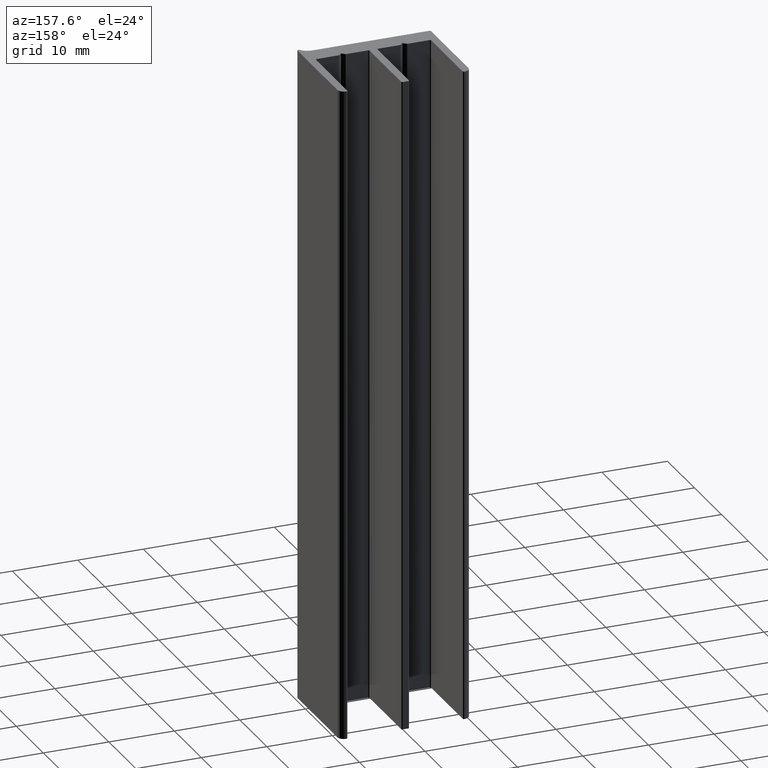
[diagram: clean part render]
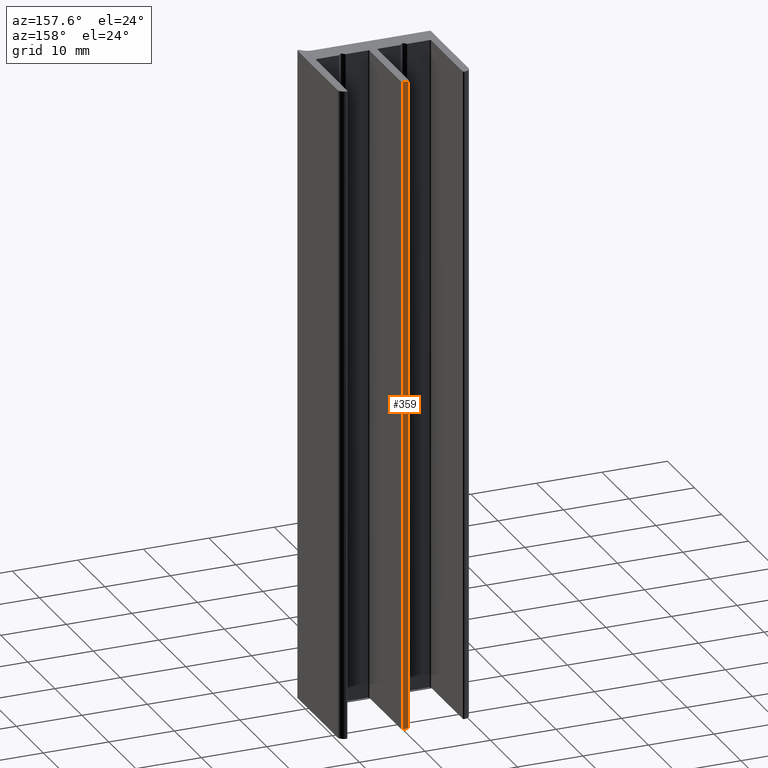
[diagram: same view with one face highlighted and labeled with its STEP entity id]
A machine part, auxiliary view. The second image highlights one B-rep face of the part: STEP entity #359.
In plain terms, the highlighted planar face has unit normal (-0, 1, 0).
Its self-contained STEP definition (entity closure, byte-faithful):
#301=CARTESIAN_POINT('',(1.299999999999955,15.000000000000341,-100.0));
#302=VERTEX_POINT('',#301);
#310=CARTESIAN_POINT('',(1.299999999999955,15.000000000000341,0.0));
#311=VERTEX_POINT('',#310);
#312=CARTESIAN_POINT('',(1.299999999999955,15.000000000000341,-100.0));
#313=DIRECTION('',(0.0,0.0,1.0));
#314=VECTOR('',#313,100.0);
#315=LINE('',#312,#314);
#316=EDGE_CURVE('',#302,#311,#315,.T.);
#329=CARTESIAN_POINT('',(1.299999999999955,15.000000000000341,-100.0));
#330=DIRECTION('',(-2.842171E-013,1.0,0.0));
#331=DIRECTION('',(-1.0,-2.842171E-013,0.0));
#332=AXIS2_PLACEMENT_3D('',#329,#330,#331);
#333=PLANE('',#332);
#334=CARTESIAN_POINT('',(0.499999999999773,15.0,-100.0));
#335=VERTEX_POINT('',#334);
#336=CARTESIAN_POINT('',(1.299999999999955,15.000000000000341,-100.0));
#337=DIRECTION('',(-1.0,-2.842171E-013,0.0));
#338=VECTOR('',#337,0.800000000000182);
#339=LINE('',#336,#338);
#340=EDGE_CURVE('',#302,#335,#339,.T.);
#341=ORIENTED_EDGE('',*,*,#340,.T.);
#342=CARTESIAN_POINT('',(0.499999999999773,15.0,0.0));
#343=VERTEX_POINT('',#342);
#344=CARTESIAN_POINT('',(0.499999999999773,15.0,-100.0));
#345=DIRECTION('',(0.0,0.0,1.0));
#346=VECTOR('',#345,100.0);
#347=LINE('',#344,#346);
#348=EDGE_CURVE('',#335,#343,#347,.T.);
#349=ORIENTED_EDGE('',*,*,#348,.T.);
#350=CARTESIAN_POINT('',(1.299999999999955,15.000000000000341,0.0));
#351=DIRECTION('',(-1.0,-2.842171E-013,0.0));
#352=VECTOR('',#351,0.800000000000182);
#353=LINE('',#350,#352);
#354=EDGE_CURVE('',#311,#343,#353,.T.);
#355=ORIENTED_EDGE('',*,*,#354,.F.);
#356=ORIENTED_EDGE('',*,*,#316,.F.);
#357=EDGE_LOOP('',(#341,#349,#355,#356));
#358=FACE_OUTER_BOUND('',#357,.T.);
#359=ADVANCED_FACE('',(#358),#333,.T.);